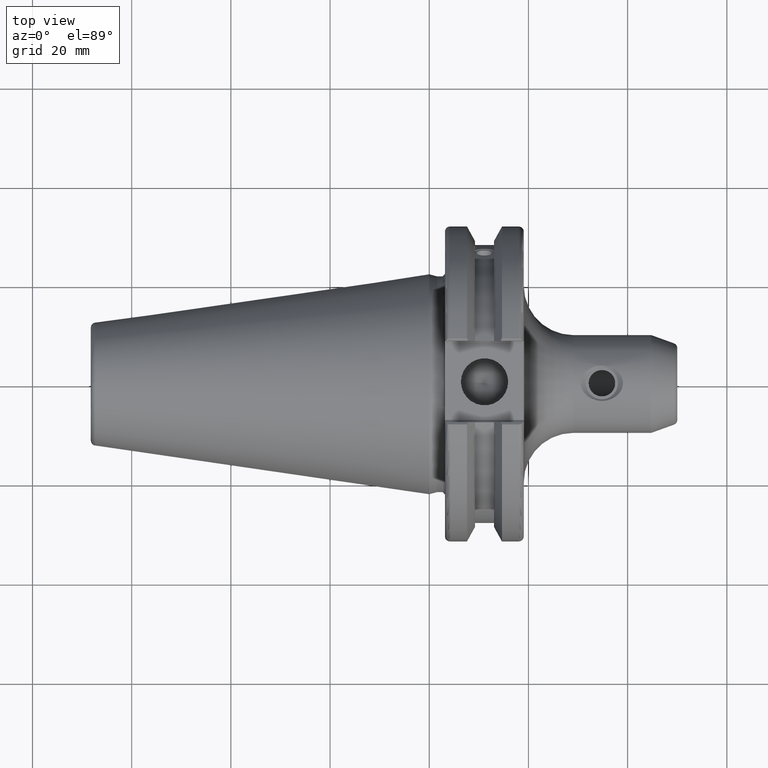
[diagram: clean part render]
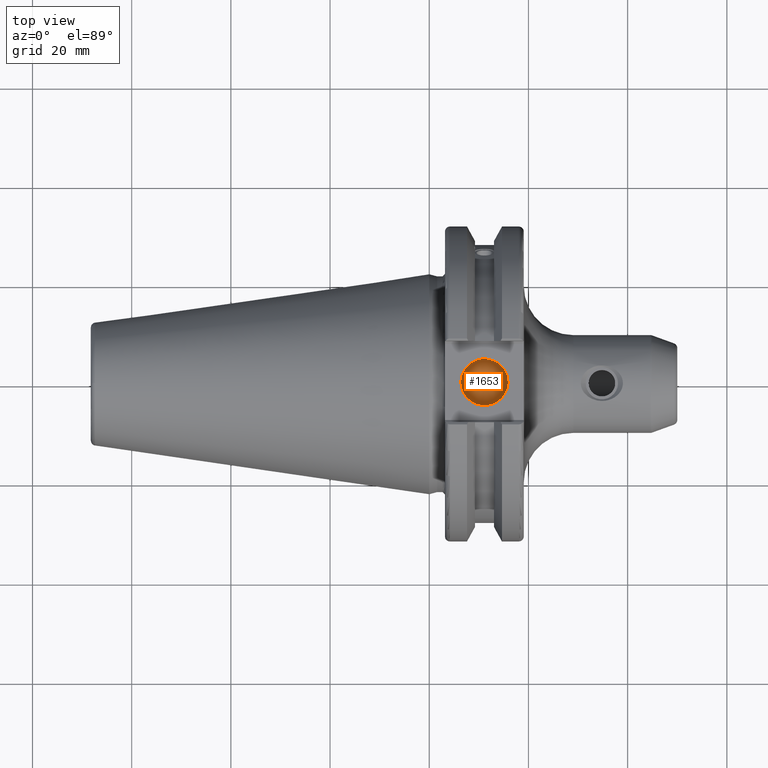
[diagram: same view with one face highlighted and labeled with its STEP entity id]
A machine part, top view. The second image highlights one B-rep face of the part: STEP entity #1653.
In plain terms, the highlighted conical surface has half-angle 59 deg.
Its self-contained STEP definition (entity closure, byte-faithful):
#50=CONICAL_SURFACE('',#1850,2.38125,1.02974425867665);
#174=CIRCLE('',#1851,4.7625);
#260=FACE_OUTER_BOUND('',#369,.T.);
#369=EDGE_LOOP('',(#1479,#1480,#1481));
#519=LINE('',#3283,#618);
#618=VECTOR('',#2293,2.38125);
#800=VERTEX_POINT('',#3280);
#801=VERTEX_POINT('',#3282);
#1037=EDGE_CURVE('',#800,#800,#174,.T.);
#1038=EDGE_CURVE('',#800,#801,#519,.T.);
#1479=ORIENTED_EDGE('',*,*,#1037,.T.);
#1480=ORIENTED_EDGE('',*,*,#1038,.T.);
#1481=ORIENTED_EDGE('',*,*,#1038,.F.);
#1653=ADVANCED_FACE('',(#260),#50,.F.);
#1850=AXIS2_PLACEMENT_3D('',#3279,#2289,#2290);
#1851=AXIS2_PLACEMENT_3D('',#3281,#2291,#2292);
#2289=DIRECTION('center_axis',(0.,0.,1.));
#2290=DIRECTION('ref_axis',(1.,0.,0.));
#2291=DIRECTION('center_axis',(0.,0.,1.));
#2292=DIRECTION('ref_axis',(1.,0.,0.));
#2293=DIRECTION('',(0.857167300702112,1.04972719113862E-16,-0.515038074910054));
#3279=CARTESIAN_POINT('Origin',(11.1341,0.,15.5692006509406));
#3280=CARTESIAN_POINT('',(6.3716,-5.83238038093927E-16,17.));
#3281=CARTESIAN_POINT('Origin',(11.1341,0.,17.));
#3282=CARTESIAN_POINT('',(11.1341,0.,14.1384013018812));
#3283=CARTESIAN_POINT('',(8.75285,-2.91619019046964E-16,15.5692006509406));